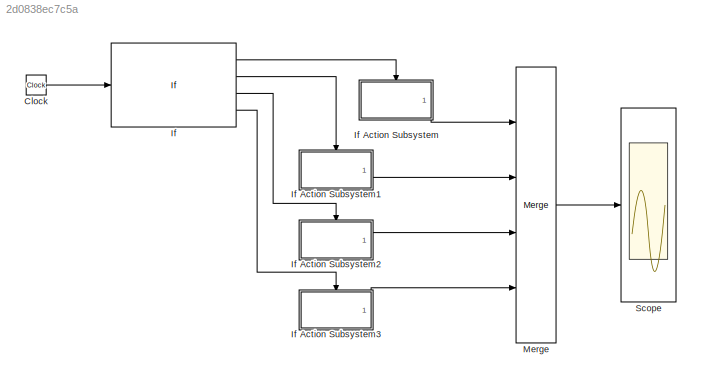
MODEL slx_2d0838ec7c5a
KIND model
BLOCK [Clock] Clock
BLOCK [If] If
  ElseIfExpressions = u1 >= 3, u1 > 2
  IfExpression = u1 >= 6
  Ports = [1, 4]
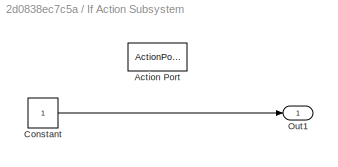
BLOCK [SubSystem] If Action Subsystem
  FunctionWithSeparateData = off
  MaskHideContents = off
  MinAlgLoopOccurrences = off
  Opaque = off
  Ports = [0, 1, 0, 0, 0, 0, 0, 1]
  PropExecContextOutsideSubsystem = off
  RTWSystemCode = Auto
  RequestExecContextInheritance = off
  TreatAsAtomicUnit = on
BLOCK [ActionPort] If Action Subsystem/Action Port
  ActionType = then
BLOCK [Constant] If Action Subsystem/Constant
BLOCK [Outport] If Action Subsystem/Out1
  IconDisplay = Port number
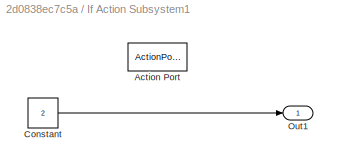
BLOCK [SubSystem] If Action Subsystem1
  FunctionWithSeparateData = off
  MaskHideContents = off
  MinAlgLoopOccurrences = off
  Opaque = off
  Ports = [0, 1, 0, 0, 0, 0, 0, 1]
  PropExecContextOutsideSubsystem = off
  RTWSystemCode = Auto
  RequestExecContextInheritance = off
  TreatAsAtomicUnit = on
BLOCK [ActionPort] If Action Subsystem1/Action Port
  ActionType = elseif
BLOCK [Constant] If Action Subsystem1/Constant
  Value = 2
BLOCK [Outport] If Action Subsystem1/Out1
  IconDisplay = Port number
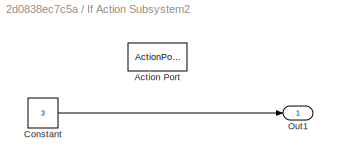
BLOCK [SubSystem] If Action Subsystem2
  FunctionWithSeparateData = off
  MaskHideContents = off
  MinAlgLoopOccurrences = off
  Opaque = off
  Ports = [0, 1, 0, 0, 0, 0, 0, 1]
  PropExecContextOutsideSubsystem = off
  RTWSystemCode = Auto
  RequestExecContextInheritance = off
  TreatAsAtomicUnit = on
BLOCK [ActionPort] If Action Subsystem2/Action Port
  ActionType = elseif
BLOCK [Constant] If Action Subsystem2/Constant
  Value = 3
BLOCK [Outport] If Action Subsystem2/Out1
  IconDisplay = Port number
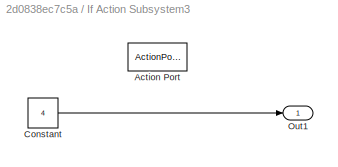
BLOCK [SubSystem] If Action Subsystem3
  FunctionWithSeparateData = off
  MaskHideContents = off
  MinAlgLoopOccurrences = off
  Opaque = off
  Ports = [0, 1, 0, 0, 0, 0, 0, 1]
  PropExecContextOutsideSubsystem = off
  RTWSystemCode = Auto
  RequestExecContextInheritance = off
  TreatAsAtomicUnit = on
BLOCK [ActionPort] If Action Subsystem3/Action Port
  ActionType = else
BLOCK [Constant] If Action Subsystem3/Constant
  Value = 4
BLOCK [Outport] If Action Subsystem3/Out1
  IconDisplay = Port number
BLOCK [Merge] Merge
  Inputs = 4
  Ports = [4, 1]
BLOCK [Scope] Scope
  DataFormat = StructureWithTime
  Floating = off
  NumInputPorts = 1
  Ports = [1]
  SampleTime = 0
  ShowLegends = off
LINE Clock:1 -> If:1
LINE If Action Subsystem/Constant:1 -> If Action Subsystem/Out1:1
LINE If Action Subsystem1/Constant:1 -> If Action Subsystem1/Out1:1
LINE If Action Subsystem1:1 -> Merge:2
LINE If Action Subsystem2/Constant:1 -> If Action Subsystem2/Out1:1
LINE If Action Subsystem2:1 -> Merge:3
LINE If Action Subsystem3/Constant:1 -> If Action Subsystem3/Out1:1
LINE If Action Subsystem3:1 -> Merge:4
LINE If Action Subsystem:1 -> Merge:1
LINE If:1 -> If Action Subsystem:ifaction
LINE If:2 -> If Action Subsystem1:ifaction
LINE If:3 -> If Action Subsystem2:ifaction
LINE If:4 -> If Action Subsystem3:ifaction
LINE Merge:1 -> Scope:1
